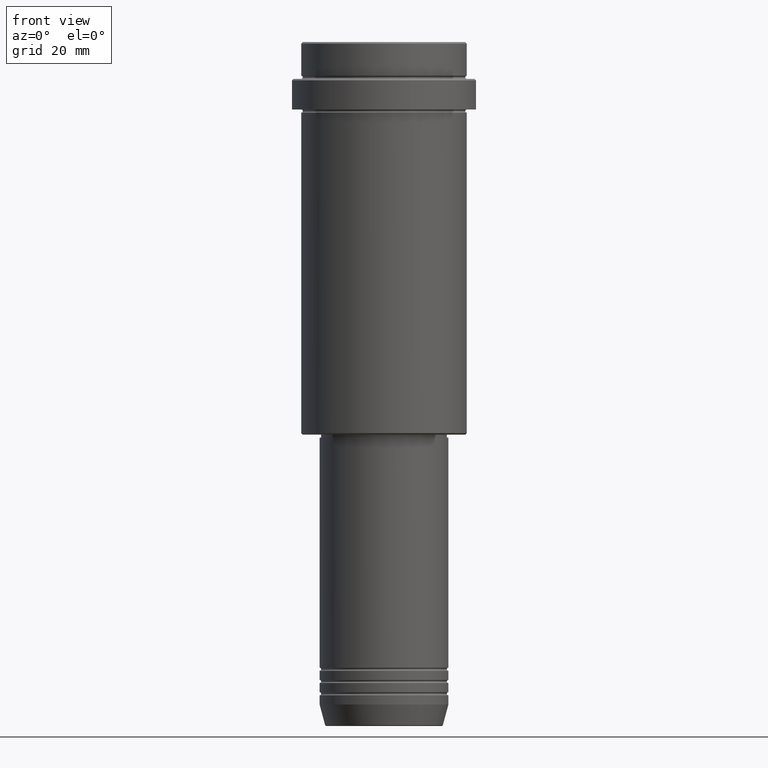
[diagram: clean part render]
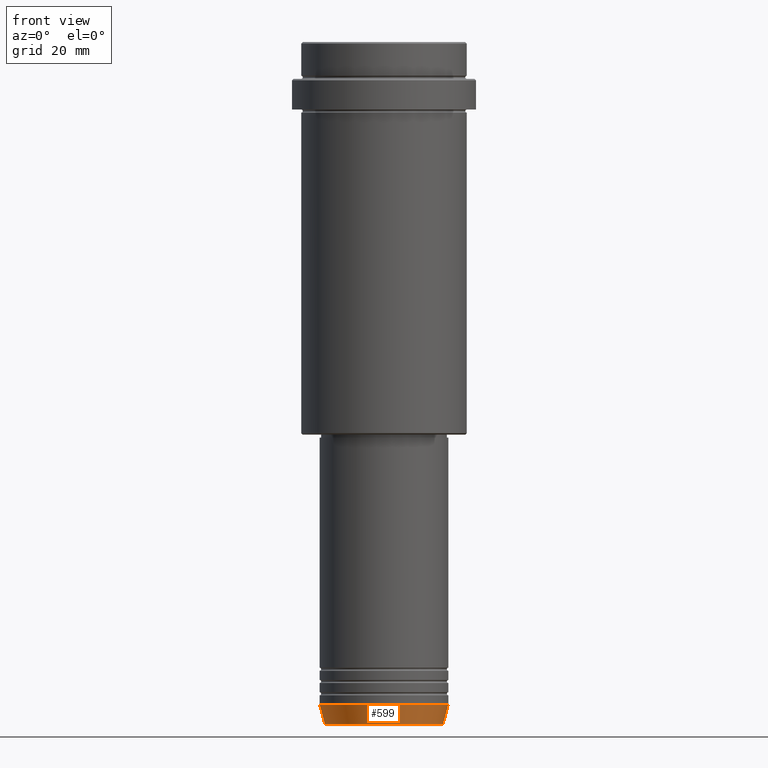
[diagram: same view with one face highlighted and labeled with its STEP entity id]
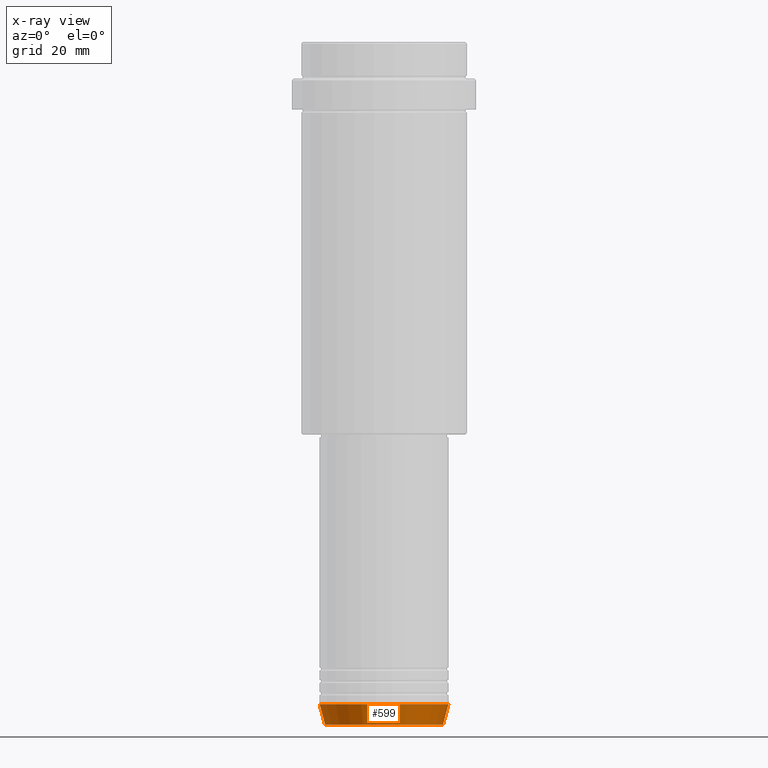
[diagram: x-ray of the same camera — body ghosted, the highlighted face saturated]
A machine part, front view. The second image highlights one B-rep face of the part: STEP entity #599.
The next image is the same camera in x-ray: the body ghosted, the highlighted face saturated — about 0% of this face is hidden behind the body in this view.
In plain terms, the highlighted conical surface has half-angle 15 deg.
Its self-contained STEP definition (entity closure, byte-faithful):
#16 = ORIENTED_EDGE ( 'NONE', *, *, #60, .T. ) ;
#32 = DIRECTION ( 'NONE',  ( 0.2588190451025213501, 0.000000000000000000, 0.9659258262890680902 ) ) ;
#46 = DIRECTION ( 'NONE',  ( -0.000000000000000000, -0.000000000000000000, 1.000000000000000000 ) ) ;
#60 = EDGE_CURVE ( 'NONE', #367, #152, #306, .T. ) ;
#152 = VERTEX_POINT ( 'NONE', #560 ) ;
#178 = AXIS2_PLACEMENT_3D ( 'NONE', #1035, #738, #936 ) ;
#239 = EDGE_CURVE ( 'NONE', #152, #1214, #792, .T. ) ;
#243 = CARTESIAN_POINT ( 'NONE',  ( 21.00000000000000000, 0.000000000000000000, -216.0000000000000284 ) ) ;
#281 = AXIS2_PLACEMENT_3D ( 'NONE', #708, #46, #478 ) ;
#306 = CIRCLE ( 'NONE', #281, 19.22365507213719127 ) ;
#336 = CARTESIAN_POINT ( 'NONE',  ( -21.00000000000000000, 2.571758278209441661E-15, -216.0000000000000284 ) ) ;
#367 = VERTEX_POINT ( 'NONE', #1356 ) ;
#379 = FACE_OUTER_BOUND ( 'NONE', #1166, .T. ) ;
#400 = CARTESIAN_POINT ( 'NONE',  ( -21.00000000000000000, 2.571758278209441661E-15, -216.0000000000000284 ) ) ;
#450 = DIRECTION ( 'NONE',  ( -0.000000000000000000, -0.000000000000000000, 1.000000000000000000 ) ) ;
#478 = DIRECTION ( 'NONE',  ( 1.000000000000000000, 0.000000000000000000, 0.000000000000000000 ) ) ;
#485 = CARTESIAN_POINT ( 'NONE',  ( 21.00000000000000000, 0.000000000000000000, -216.0000000000000284 ) ) ;
#560 = CARTESIAN_POINT ( 'NONE',  ( 19.22365507213719127, 0.000000000000000000, -222.6294095225512990 ) ) ;
#599 = ADVANCED_FACE ( 'NONE', ( #379 ), #770, .T. ) ;
#619 = DIRECTION ( 'NONE',  ( -0.2588190451025213501, 3.169619151431772337E-17, 0.9659258262890680902 ) ) ;
#652 = VERTEX_POINT ( 'NONE', #336 ) ;
#695 = CARTESIAN_POINT ( 'NONE',  ( 0.000000000000000000, 0.000000000000000000, -216.0000000000000284 ) ) ;
#708 = CARTESIAN_POINT ( 'NONE',  ( 0.000000000000000000, 0.000000000000000000, -222.6294095225512990 ) ) ;
#738 = DIRECTION ( 'NONE',  ( -0.000000000000000000, -0.000000000000000000, 1.000000000000000000 ) ) ;
#770 = CONICAL_SURFACE ( 'NONE', #1311, 21.00000000000000000, 0.2617993877991500740 ) ;
#792 = LINE ( 'NONE', #243, #1334 ) ;
#833 = VECTOR ( 'NONE', #619, 1000.000000000000000 ) ;
#877 = CIRCLE ( 'NONE', #178, 21.00000000000000000 ) ;
#881 = ORIENTED_EDGE ( 'NONE', *, *, #239, .T. ) ;
#936 = DIRECTION ( 'NONE',  ( 1.000000000000000000, 0.000000000000000000, 0.000000000000000000 ) ) ;
#982 = ORIENTED_EDGE ( 'NONE', *, *, #1291, .F. ) ;
#1035 = CARTESIAN_POINT ( 'NONE',  ( 0.000000000000000000, 0.000000000000000000, -216.0000000000000284 ) ) ;
#1046 = LINE ( 'NONE', #400, #833 ) ;
#1166 = EDGE_LOOP ( 'NONE', ( #1363, #16, #881, #982 ) ) ;
#1202 = EDGE_CURVE ( 'NONE', #367, #652, #1046, .T. ) ;
#1214 = VERTEX_POINT ( 'NONE', #485 ) ;
#1291 = EDGE_CURVE ( 'NONE', #652, #1214, #877, .T. ) ;
#1311 = AXIS2_PLACEMENT_3D ( 'NONE', #695, #450, #1320 ) ;
#1320 = DIRECTION ( 'NONE',  ( 1.000000000000000000, 0.000000000000000000, 0.000000000000000000 ) ) ;
#1334 = VECTOR ( 'NONE', #32, 1000.000000000000000 ) ;
#1356 = CARTESIAN_POINT ( 'NONE',  ( -19.22365507213719127, 2.462988521705000655E-15, -222.6294095225512990 ) ) ;
#1363 = ORIENTED_EDGE ( 'NONE', *, *, #1202, .F. ) ;